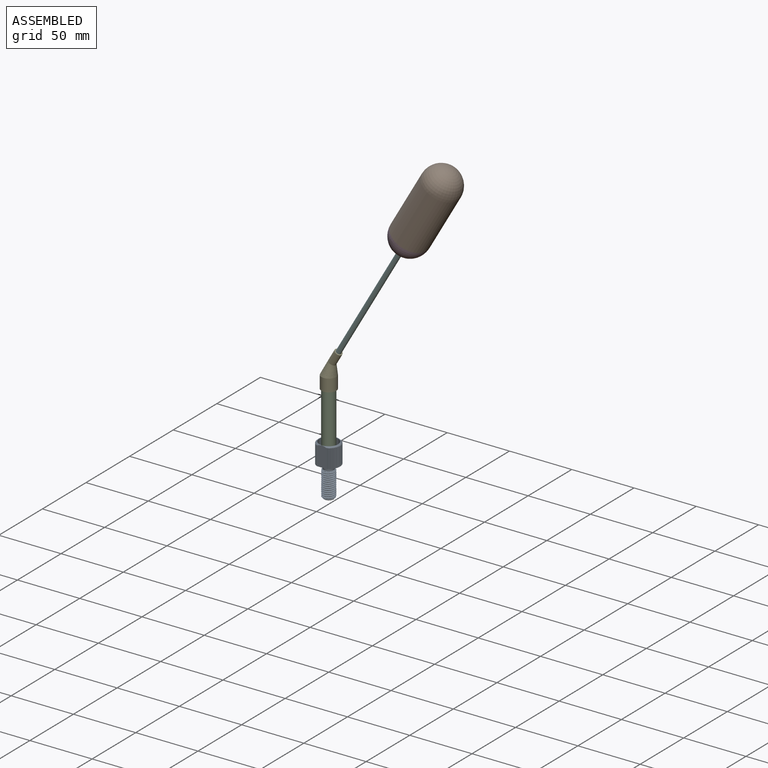
[diagram: assembled view]
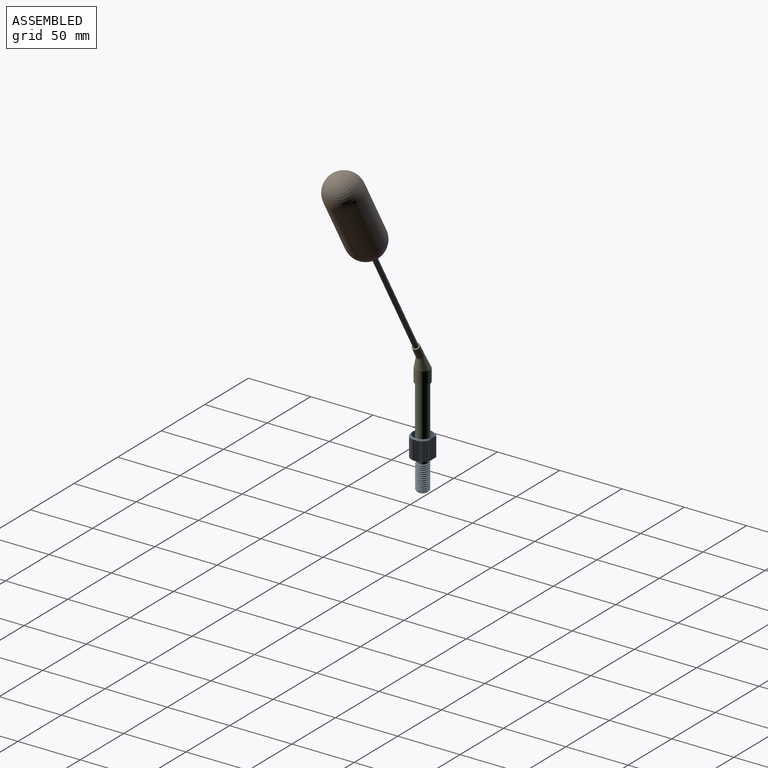
[diagram: assembled view, second angle]
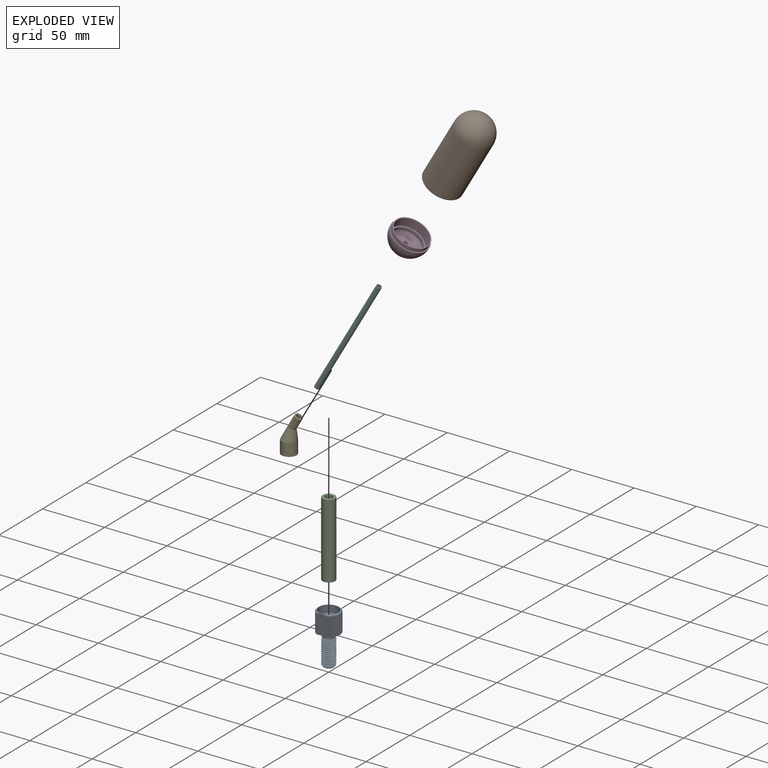
[diagram: exploded view]
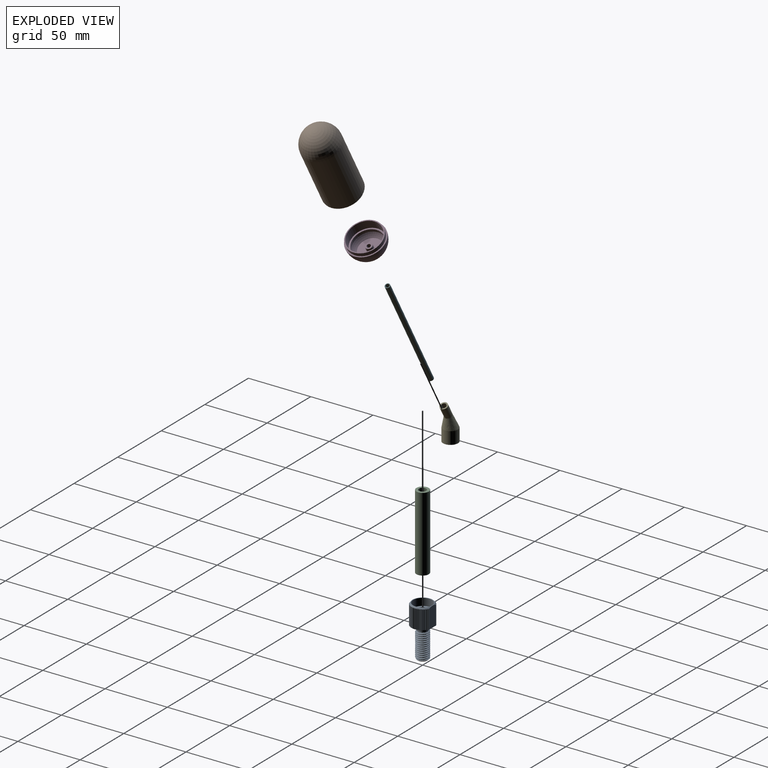
[diagram: exploded view, second angle]
ASSEMBLY  parts=6 mates=4
PART A: 151 faces, bbox 18x18x41.4 mm
  f0: torus R=5.5mm, axis (0,0,-1), area 28.7mm2, adj f13,f74
  f1: torus R=7.47mm, axis (0,0,-1), area 7.4mm2, adj f14,f73
  f2: cone r=7.58mm half-angle=45deg, axis (0,0,1), area 6.8mm2, adj f14,f72
  f3: cone r=6mm half-angle=45deg, axis (0,0,1), area 5.4mm2, adj f13,f73
  f4: cone r=2.5mm half-angle=45deg, axis (0,0,1), area 62.2mm2, adj f12,f74
  f5: cone r=3mm half-angle=45deg, axis (0,0,-1), area 12.2mm2, adj f12,f75
  f6: cone r=3.75mm half-angle=45deg, axis (0,0,-1), area 15.6mm2, adj f11,f70
  f7: cone r=8mm half-angle=45deg, axis (0,0,-1), area 26.7mm2, adj f32,f34,f35,f36,f37,f38,f39,f40
  f8: cylinder r=7.56mm len=15.12mm, axis (0,0,-1), area 59.4mm2, adj f71,f76
  f9: cylinder r=5.41mm len=10.82mm, axis (0,0,-1), area 42.5mm2, adj f67,f76
  f10: cone r=4.03mm half-angle=60deg, axis (0,0,-1), area 15.6mm2, adj f15,f31,f68,f69
  f11: cylinder r=3.25mm len=6.5mm, axis (0,0,1), area 107.5mm2, adj f6,f75
  f12: cylinder r=2.5mm len=19.74mm, axis (0,0,1), area 310mm2, adj f4,f5
  f13: cylinder r=6mm len=12mm, axis (0,0,1), area 241.3mm2, adj f0,f3
  f14: cylinder r=7.58mm len=15.15mm, axis (0,0,1), area 276.1mm2, adj f1,f2
  f15: cylinder r=4.03mm len=8.05mm, axis (0,0,-1), area 98.7mm2, adj f10,f16,f67,f68,f69
  f16: cylinder r=4.03mm len=8.05mm, axis (0,0,-1), area 4.7mm2, adj f15,f17,f68,f69
  f17: cylinder r=4.03mm len=8.05mm, axis (0,0,-1), area 4.7mm2, adj f16,f18,f68,f69
  f18: cylinder r=4.03mm len=8.05mm, axis (0,0,-1), area 4.7mm2, adj f17,f19,f68,f69
  f19: cylinder r=4.03mm len=8.05mm, axis (0,0,-1), area 4.7mm2, adj f18,f20,f68,f69
  f20: cylinder r=4.03mm len=8.05mm, axis (0,0,-1), area 4.7mm2, adj f19,f21,f68,f69
  f21: cylinder r=4.03mm len=8.05mm, axis (0,0,-1), area 4.7mm2, adj f20,f22,f68,f69
  f22: cylinder r=4.03mm len=8.05mm, axis (0,0,-1), area 4.7mm2, adj f21,f23,f68,f69
  f23: cylinder r=4.03mm len=8.05mm, axis (0,0,-1), area 4.7mm2, adj f22,f24,f68,f69
  f24: cylinder r=4.03mm len=8.05mm, axis (0,0,-1), area 4.7mm2, adj f23,f25,f68,f69
  f25: cylinder r=4.03mm len=8.05mm, axis (0,0,-1), area 4.7mm2, adj f24,f26,f68,f69
  f26: cylinder r=4.03mm len=8.05mm, axis (0,0,-1), area 4.7mm2, adj f25,f27,f68,f69
  f27: cylinder r=4.03mm len=8.05mm, axis (0,0,-1), area 4.7mm2, adj f26,f28,f68,f69
  f28: cylinder r=4.03mm len=8.05mm, axis (0,0,-1), area 4.7mm2, adj f27,f29,f68,f69
  f29: cylinder r=4.03mm len=5.67mm, axis (0,0,-1), area 1.2mm2, adj f28,f30,f68,f69
  f30: cone r=5mm half-angle=45deg, axis (0,0,1), area 24.3mm2, adj f29,f31,f68,f69,f70
  f31: cylinder r=5mm len=19.56mm, axis (0,0,1), area 76.8mm2, adj f10,f30,f68,f69
  f32: cylinder r=9mm len=15mm, axis (0,0,-1), area 6.4mm2, adj f7,f71,f129,f132
  f33: cone r=8mm half-angle=45deg, axis (0,0,-1), area 26.7mm2, adj f50,f51,f52,f53,f54,f55,f56,f57
  f34: cylinder r=9mm len=15mm, axis (0,0,-1), area 6.4mm2, adj f7,f71,f145,f148
  f35: cylinder r=9mm len=15mm, axis (0,0,-1), area 6.4mm2, adj f7,f71,f143,f146
  f36: cylinder r=9mm len=15mm, axis (0,0,-1), area 6.4mm2, adj f7,f71,f141,f144
  f37: cylinder r=9mm len=15mm, axis (0,0,-1), area 6.4mm2, adj f7,f71,f139,f142
  f38: cylinder r=9mm len=15mm, axis (0,0,-1), area 6.4mm2, adj f7,f71,f137,f140
  f39: cylinder r=9mm len=15mm, axis (0,0,-1), area 6.4mm2, adj f7,f71,f135,f138
  f40: cylinder r=9mm len=15mm, axis (0,0,-1), area 6.4mm2, adj f7,f71,f133,f136
  f41: cylinder r=9mm len=15mm, axis (0,0,-1), area 6.4mm2, adj f7,f71,f131,f134
  f42: cylinder r=9mm len=15mm, axis (0,0,-1), area 6.4mm2, adj f7,f71,f127,f130
  f43: cylinder r=9mm len=15mm, axis (0,0,-1), area 6.4mm2, adj f7,f71,f125,f128
  f44: cylinder r=9mm len=15mm, axis (0,0,-1), area 6.4mm2, adj f7,f71,f123,f126
  f45: cylinder r=9mm len=15mm, axis (0,0,-1), area 6.4mm2, adj f7,f71,f121,f124
  f46: cylinder r=9mm len=15mm, axis (0,0,-1), area 6.4mm2, adj f7,f71,f119,f122
  f47: cylinder r=9mm len=15mm, axis (0,0,-1), area 6.4mm2, adj f7,f71,f117,f120
  f48: cylinder r=9mm len=15mm, axis (0,0,-1), area 6.4mm2, adj f7,f71,f115,f118
  f49: cylinder r=9mm len=15mm, axis (0,0,-1), area 6.4mm2, adj f7,f71,f113,f116
  f50: cylinder r=9mm len=15mm, axis (0,0,-1), area 6.4mm2, adj f33,f71,f109,f112
  f51: cylinder r=9mm len=15mm, axis (0,0,-1), area 6.4mm2, adj f33,f71,f107,f110
  f52: cylinder r=9mm len=15mm, axis (0,0,-1), area 6.4mm2, adj f33,f71,f105,f108
  f53: cylinder r=9mm len=15mm, axis (0,0,-1), area 6.4mm2, adj f33,f71,f103,f106
  f54: cylinder r=9mm len=15mm, axis (0,0,-1), area 6.4mm2, adj f33,f71,f101,f104
  f55: cylinder r=9mm len=15mm, axis (0,0,-1), area 6.4mm2, adj f33,f71,f99,f102
  f56: cylinder r=9mm len=15mm, axis (0,0,-1), area 6.4mm2, adj f33,f71,f97,f100
  f57: cylinder r=9mm len=15mm, axis (0,0,-1), area 6.4mm2, adj f33,f71,f95,f98
  f58: cylinder r=9mm len=15mm, axis (0,0,-1), area 6.4mm2, adj f33,f71,f93,f96
  f59: cylinder r=9mm len=15mm, axis (0,0,-1), area 6.4mm2, adj f33,f71,f91,f94
  f60: cylinder r=9mm len=15mm, axis (0,0,-1), area 6.4mm2, adj f33,f71,f89,f92
  f61: cylinder r=9mm len=15mm, axis (0,0,-1), area 6.4mm2, adj f33,f71,f87,f90
  f62: cylinder r=9mm len=15mm, axis (0,0,-1), area 6.4mm2, adj f33,f71,f85,f88
  f63: cylinder r=9mm len=15mm, axis (0,0,-1), area 6.4mm2, adj f33,f71,f83,f86
  f64: cylinder r=9mm len=15mm, axis (0,0,-1), area 6.4mm2, adj f33,f71,f81,f84
  f65: cylinder r=9mm len=15mm, axis (0,0,-1), area 6.4mm2, adj f33,f71,f79,f82
  f66: cylinder r=9mm len=15mm, axis (0,0,-1), area 6.4mm2, adj f33,f71,f77,f80
  f67: plane 10.82x10.82mm, normal (0,0,-1), area 41mm2, adj f9,f15
  f68: bspline ~21.66x10mm, area 432.2mm2, adj f10,f15,f16,f17,f18,f19,f20,f21
  f69: bspline ~21.66x9.94mm, area 432.2mm2, adj f10,f15,f16,f17,f18,f19,f20,f21
  f70: plane 7.75x7.75mm, normal (0,0,-1), area 3mm2, adj f6,f30
  f71: plane 18x16mm, normal (0,0,-1), area 59.2mm2, adj f8,f32,f34,f35,f36,f37,f38,f39
  f72: plane 16x16mm, normal (0,0,1), area 16mm2, adj f2,f7,f33
  f73: plane 14.95x14.95mm, normal (0,0,1), area 58.6mm2, adj f1,f3
  f74: plane 11x11mm, normal (0,0,1), area 31.4mm2, adj f0,f4
  f75: plane 6.5x6.5mm, normal (0,0,-1), area 4.9mm2, adj f5,f11
  f76: plane 15.12x15.12mm, normal (0,0,-1), area 87.6mm2, adj f8,f9
  f77: plane 15.37x0.49mm, normal (-0.28,0.96,0), area 7.6mm2, adj f33,f66,f71,f78
  f78: plane 15.37x0.44mm, normal (0.96,0.28,0), area 6.8mm2, adj f33,f71,f77,f149
  f79: plane 15.37x0.5mm, normal (-0.16,0.99,0), area 7.6mm2, adj f33,f65,f71,f80
  f80: plane 15.37x0.5mm, normal (0.99,0.16,0), area 7.6mm2, adj f33,f66,f71,f79
  f81: plane 15.37x0.51mm, normal (-0.03,1,0), area 7.6mm2, adj f33,f64,f71,f82
  f82: plane 15.37x0.51mm, normal (1,0.03,0), area 7.6mm2, adj f33,f65,f71,f81
  f83: plane 15.37x0.51mm, normal (0.09,1,0), area 7.6mm2, adj f33,f63,f71,f84
  f84: plane 15.37x0.51mm, normal (1,-0.09,0), area 7.6mm2, adj f33,f64,f71,f83
  f85: plane 15.37x0.5mm, normal (0.22,0.98,0), area 7.6mm2, adj f33,f62,f71,f86
  f86: plane 15.37x0.5mm, normal (0.98,-0.22,0), area 7.6mm2, adj f33,f63,f71,f85
  f87: plane 15.37x0.48mm, normal (0.34,0.94,0), area 7.6mm2, adj f33,f61,f71,f88
  f88: plane 15.37x0.48mm, normal (0.94,-0.34,0), area 7.6mm2, adj f33,f62,f71,f87
  f89: plane 15.37x0.45mm, normal (0.45,0.89,0), area 7.6mm2, adj f33,f60,f71,f90
  f90: plane 15.37x0.45mm, normal (0.89,-0.45,0), area 7.6mm2, adj f33,f61,f71,f89
  f91: plane 15.37x0.42mm, normal (0.56,0.83,0), area 7.6mm2, adj f33,f59,f71,f92
  f92: plane 15.37x0.42mm, normal (0.83,-0.56,0), area 7.6mm2, adj f33,f60,f71,f91
  f93: plane 15.37x0.38mm, normal (0.66,0.75,0), area 7.6mm2, adj f33,f58,f71,f94
  f94: plane 15.37x0.38mm, normal (0.75,-0.66,0), area 7.6mm2, adj f33,f59,f71,f93
  f95: plane 15.37x0.38mm, normal (0.75,0.66,0), area 7.6mm2, adj f33,f57,f71,f96
  f96: plane 15.37x0.38mm, normal (0.66,-0.75,0), area 7.6mm2, adj f33,f58,f71,f95
  f97: plane 15.37x0.42mm, normal (0.83,0.56,0), area 7.6mm2, adj f33,f56,f71,f98
  f98: plane 15.37x0.42mm, normal (0.56,-0.83,0), area 7.6mm2, adj f33,f57,f71,f97
  f99: plane 15.37x0.45mm, normal (0.89,0.45,0), area 7.6mm2, adj f33,f55,f71,f100
  f100: plane 15.37x0.45mm, normal (0.45,-0.89,0), area 7.6mm2, adj f33,f56,f71,f99
  f101: plane 15.37x0.48mm, normal (0.94,0.34,0), area 7.6mm2, adj f33,f54,f71,f102
  f102: plane 15.37x0.48mm, normal (0.34,-0.94,0), area 7.6mm2, adj f33,f55,f71,f101
  f103: plane 15.37x0.5mm, normal (0.98,0.22,0), area 7.6mm2, adj f33,f53,f71,f104
  f104: plane 15.37x0.5mm, normal (0.22,-0.98,0), area 7.6mm2, adj f33,f54,f71,f103
  f105: plane 15.37x0.51mm, normal (1,0.09,0), area 7.6mm2, adj f33,f52,f71,f106
  f106: plane 15.37x0.51mm, normal (0.09,-1,0), area 7.6mm2, adj f33,f53,f71,f105
  f107: plane 15.37x0.51mm, normal (1,-0.03,0), area 7.6mm2, adj f33,f51,f71,f108
  f108: plane 15.37x0.51mm, normal (-0.03,-1,0), area 7.6mm2, adj f33,f52,f71,f107
  f109: plane 15.37x0.5mm, normal (0.99,-0.16,0), area 7.6mm2, adj f33,f50,f71,f110
  f110: plane 15.37x0.5mm, normal (-0.16,-0.99,0), area 7.6mm2, adj f33,f51,f71,f109
  f111: plane 15.37x0.44mm, normal (0.96,-0.28,0), area 6.8mm2, adj f33,f71,f112,f150
  f112: plane 15.37x0.49mm, normal (-0.28,-0.96,0), area 7.6mm2, adj f33,f50,f71,f111
  f113: plane 15.37x0.49mm, normal (0.28,-0.96,0), area 7.6mm2, adj f7,f49,f71,f114
  f114: plane 15.37x0.44mm, normal (-0.96,-0.28,0), area 6.8mm2, adj f7,f71,f113,f150
  f115: plane 15.37x0.5mm, normal (0.16,-0.99,0), area 7.6mm2, adj f7,f48,f71,f116
  f116: plane 15.37x0.5mm, normal (-0.99,-0.16,0), area 7.6mm2, adj f7,f49,f71,f115
  f117: plane 15.37x0.51mm, normal (0.03,-1,0), area 7.6mm2, adj f7,f47,f71,f118
  f118: plane 15.37x0.51mm, normal (-1,-0.03,0), area 7.6mm2, adj f7,f48,f71,f117
  f119: plane 15.37x0.51mm, normal (-0.09,-1,0), area 7.6mm2, adj f7,f46,f71,f120
  f120: plane 15.37x0.51mm, normal (-1,0.09,0), area 7.6mm2, adj f7,f47,f71,f119
  f121: plane 15.37x0.5mm, normal (-0.22,-0.98,0), area 7.6mm2, adj f7,f45,f71,f122
  f122: plane 15.37x0.5mm, normal (-0.98,0.22,0), area 7.6mm2, adj f7,f46,f71,f121
  f123: plane 15.37x0.48mm, normal (-0.34,-0.94,0), area 7.6mm2, adj f7,f44,f71,f124
  f124: plane 15.37x0.48mm, normal (-0.94,0.34,0), area 7.6mm2, adj f7,f45,f71,f123
  f125: plane 15.37x0.45mm, normal (-0.45,-0.89,0), area 7.6mm2, adj f7,f43,f71,f126
  f126: plane 15.37x0.45mm, normal (-0.89,0.45,0), area 7.6mm2, adj f7,f44,f71,f125
  f127: plane 15.37x0.42mm, normal (-0.56,-0.83,0), area 7.6mm2, adj f7,f42,f71,f128
  f128: plane 15.37x0.42mm, normal (-0.83,0.56,0), area 7.6mm2, adj f7,f43,f71,f127
  f129: plane 15.37x0.38mm, normal (-0.66,-0.75,0), area 7.6mm2, adj f7,f32,f71,f130
  f130: plane 15.37x0.38mm, normal (-0.75,0.66,0), area 7.6mm2, adj f7,f42,f71,f129
  f131: plane 15.37x0.38mm, normal (-0.75,-0.66,0), area 7.6mm2, adj f7,f41,f71,f132
  f132: plane 15.37x0.38mm, normal (-0.66,0.75,0), area 7.6mm2, adj f7,f32,f71,f131
  f133: plane 15.37x0.42mm, normal (-0.83,-0.56,0), area 7.6mm2, adj f7,f40,f71,f134
  f134: plane 15.37x0.42mm, normal (-0.56,0.83,0), area 7.6mm2, adj f7,f41,f71,f133
  f135: plane 15.37x0.45mm, normal (-0.89,-0.45,0), area 7.6mm2, adj f7,f39,f71,f136
  f136: plane 15.37x0.45mm, normal (-0.45,0.89,0), area 7.6mm2, adj f7,f40,f71,f135
  f137: plane 15.37x0.48mm, normal (-0.94,-0.34,0), area 7.6mm2, adj f7,f38,f71,f138
  f138: plane 15.37x0.48mm, normal (-0.34,0.94,0), area 7.6mm2, adj f7,f39,f71,f137
  f139: plane 15.37x0.5mm, normal (-0.98,-0.22,0), area 7.6mm2, adj f7,f37,f71,f140
  f140: plane 15.37x0.5mm, normal (-0.22,0.98,0), area 7.6mm2, adj f7,f38,f71,f139
  f141: plane 15.37x0.51mm, normal (-1,-0.09,0), area 7.6mm2, adj f7,f36,f71,f142
  f142: plane 15.37x0.51mm, normal (-0.09,1,0), area 7.6mm2, adj f7,f37,f71,f141
  f143: plane 15.37x0.51mm, normal (-1,0.03,0), area 7.6mm2, adj f7,f35,f71,f144
  f144: plane 15.37x0.51mm, normal (0.03,1,0), area 7.6mm2, adj f7,f36,f71,f143
  f145: plane 15.37x0.5mm, normal (-0.99,0.16,0), area 7.6mm2, adj f7,f34,f71,f146
  f146: plane 15.37x0.5mm, normal (0.16,0.99,0), area 7.6mm2, adj f7,f35,f71,f145
  f147: plane 15.37x0.44mm, normal (-0.96,0.28,0), area 6.8mm2, adj f7,f71,f148,f149
  f148: plane 15.37x0.49mm, normal (0.28,0.96,0), area 7.6mm2, adj f7,f34,f71,f147
  f149: plane 16x8.08mm, normal (0,1,0), area 126.6mm2, adj f7,f33,f71,f78,f147
  f150: plane 16x8.08mm, normal (0,-1,0), area 126.5mm2, adj f7,f33,f71,f111,f114
PART B: 5 faces, bbox 30x30x65 mm
  f0: torus R=0mm, axis (0,0,-1), area 1417.3mm2, adj f4
  f1: torus R=0mm, axis (0,0,-1), area 1234.9mm2, adj f2
  f2: cylinder r=14mm len=50mm, axis (0,0,-1), area 4398.2mm2, adj f1,f3
  f3: plane 30x30mm, normal (0,0,-1), area 91.1mm2, adj f2,f4
  f4: cylinder r=15mm len=50mm, axis (0,0,-1), area 4712.4mm2, adj f0,f3
PART C: 4 faces, bbox 10x10x60 mm
  f0: cylinder r=3mm len=60mm, axis (0,0,-1), area 1131mm2, adj f2,f3
  f1: cylinder r=5mm len=60mm, axis (0,0,-1), area 1885mm2, adj f2,f3
  f2: plane 10x10mm, normal (0,0,1), area 50.3mm2, adj f0,f1
  f3: plane 10x10mm, normal (0,0,-1), area 50.3mm2, adj f0,f1
PART D: 12 faces, bbox 29.9x29.9x17.9 mm
  f0: plane 26.4x26.4mm, normal (0,0,1), area 95mm2, adj f1,f11
  f1: cylinder r=13.2mm len=26.4mm, axis (0,0,1), area 627.3mm2, adj f0,f2
  f2: plane 28x28mm, normal (0,0,1), area 68.4mm2, adj f1,f3
  f3: cylinder r=14mm len=28mm, axis (0,0,1), area 263.9mm2, adj f2,f4
  f4: plane 29.93x29.93mm, normal (0,0,1), area 88mm2, adj f3,f5
  f5: sphere r=14.97mm, area 1400.3mm2, adj f4,f6
  f6: cylinder r=1.5mm len=8mm, axis (0,0,1), area 75.4mm2, adj f5,f7
  f7: plane 5.4x5.4mm, normal (0,0,1), area 15.8mm2, adj f6,f8
  f8: cylinder r=2.7mm len=5.4mm, axis (0,0,1), area 60.7mm2, adj f7,f10
  f9: sphere r=13.97mm, area 291.4mm2, adj f10,f11
  f10: plane 18.5x18.5mm, normal (0,0,1), area 245.8mm2, adj f8,f9
  f11: cylinder r=12mm len=24mm, axis (0,0,-1), area 194.7mm2, adj f0,f9
PART E: 8 faces, bbox 16.4x12x30.1 mm
  f0: bspline ~10.94x10mm, area 232.2mm2, adj f3,f5
  f1: bspline ~12x12mm, area 298.6mm2, adj f2,f6
  f2: extruded ~11.66x10.2mm, area 188.5mm2, adj f1,f4
  f3: extruded ~10.66x8.46mm, area 125.7mm2, adj f0,f4
  f4: plane 6x5.2mm, normal (0.5,0,0.87), area 15.7mm2, adj f2,f3
  f5: extruded ~10x10mm, area 314.2mm2, adj f0,f7
  f6: extruded ~12x12mm, area 377mm2, adj f1,f7
  f7: plane 12x12mm, normal (0,0,-1), area 34.6mm2, adj f5,f6
PART F: 4 faces, bbox 4x4x100 mm
  f0: cylinder r=1.5mm len=100mm, axis (0,0,-1), area 942.5mm2, adj f2,f3
  f1: cylinder r=2mm len=100mm, axis (0,0,-1), area 1256.6mm2, adj f2,f3
  f2: plane 4x4mm, normal (0,0,1), area 5.5mm2, adj f0,f1
  f3: plane 4x4mm, normal (0,0,-1), area 5.5mm2, adj f0,f1
PLACE A t=(0,0,-3)mm
PLACE B rot(axis=(0,1,0),30deg) t=(26.22,0.03,111.76)mm
PLACE C at identity
PLACE D rot(axis=(0,1,0),30deg) t=(57.79,0.03,166.45)mm
PLACE E t=(-19.95,0.03,48.27)mm
PLACE F rot(axis=(0.97,0,-0.26),180deg) t=(57.83,0.03,166.52)mm
MATE fastened B.f0 <-> D.f1  axis (-0.5,0,-0.87) through (65.28,0.03,179.41)mm
MATE fastened D.f1 <-> F.f1  axis (0.5,0,0.87) through (57.83,0.03,166.52)mm
MATE fastened A.f0 <-> C.f0  axis (0,0,1) through (0,0,0)mm
MATE fastened F.f1 <-> E.f4  axis (0.5,0,0.87) through (7.83,0.03,79.91)mm
